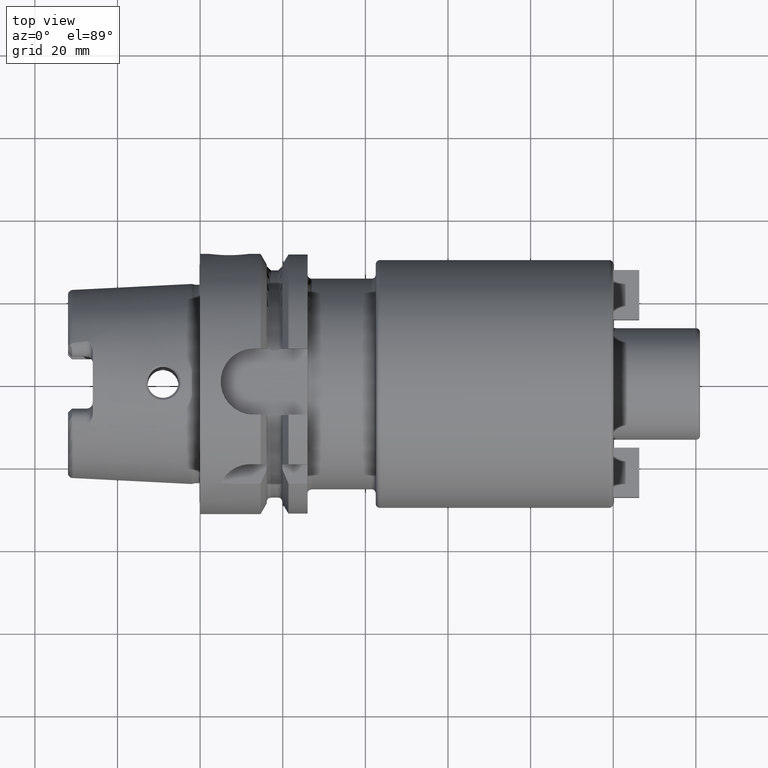
[diagram: clean part render]
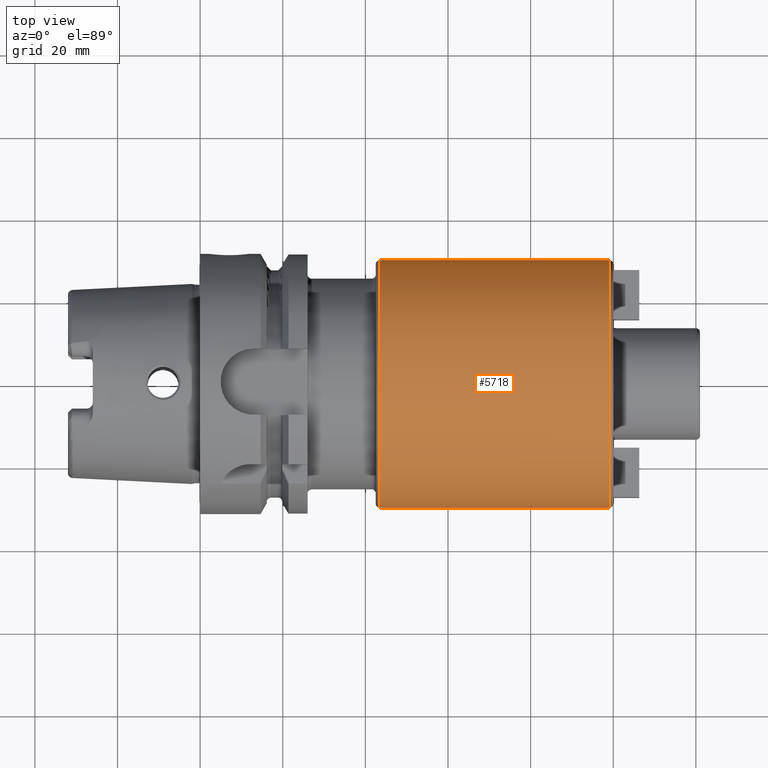
[diagram: same view with one face highlighted and labeled with its STEP entity id]
A machine part, top view. The second image highlights one B-rep face of the part: STEP entity #5718.
In plain terms, the highlighted cylindrical surface (partial cylindrical patch) has radius 30 mm, axis along (1, 0, 0).
Its self-contained STEP definition (entity closure, byte-faithful):
#2115=DIRECTION('',(-1.E0,0.E0,0.E0));
#2116=VECTOR('',#2115,5.55E1);
#2117=CARTESIAN_POINT('',(9.9E1,-3.E1,7.471729513904E-14));
#2118=LINE('',#2117,#2116);
#2124=DIRECTION('',(-1.E0,0.E0,0.E0));
#2125=VECTOR('',#2124,5.55E1);
#2126=CARTESIAN_POINT('',(9.9E1,3.E1,-7.563578023840E-14));
#2127=LINE('',#2126,#2125);
#2128=CARTESIAN_POINT('',(4.35E1,0.E0,0.E0));
#2129=DIRECTION('',(1.E0,0.E0,0.E0));
#2130=DIRECTION('',(0.E0,1.E0,0.E0));
#2131=AXIS2_PLACEMENT_3D('',#2128,#2129,#2130);
#2133=CARTESIAN_POINT('',(9.9E1,0.E0,0.E0));
#2134=DIRECTION('',(-1.E0,0.E0,0.E0));
#2135=DIRECTION('',(0.E0,-1.E0,0.E0));
#2136=AXIS2_PLACEMENT_3D('',#2133,#2134,#2135);
#3281=CARTESIAN_POINT('',(9.9E1,3.E1,0.E0));
#3282=CARTESIAN_POINT('',(9.9E1,-3.E1,0.E0));
#3283=VERTEX_POINT('',#3281);
#3284=VERTEX_POINT('',#3282);
#3376=CARTESIAN_POINT('',(4.35E1,-3.E1,0.E0));
#3377=CARTESIAN_POINT('',(4.35E1,3.E1,0.E0));
#3378=VERTEX_POINT('',#3376);
#3379=VERTEX_POINT('',#3377);
#5705=CARTESIAN_POINT('',(2.125E1,0.E0,0.E0));
#5706=DIRECTION('',(1.E0,0.E0,0.E0));
#5707=DIRECTION('',(0.E0,-1.E0,0.E0));
#5708=AXIS2_PLACEMENT_3D('',#5705,#5706,#5707);
#5709=CYLINDRICAL_SURFACE('',#5708,3.E1);
#5711=ORIENTED_EDGE('',*,*,#5710,.F.);
#5712=ORIENTED_EDGE('',*,*,#5700,.F.);
#5714=ORIENTED_EDGE('',*,*,#5713,.F.);
#5715=ORIENTED_EDGE('',*,*,#5696,.T.);
#5716=EDGE_LOOP('',(#5711,#5712,#5714,#5715));
#5717=FACE_OUTER_BOUND('',#5716,.F.);
#5718=ADVANCED_FACE('',(#5717),#5709,.T.);
#2132=CIRCLE('',#2131,3.E1);
#2137=CIRCLE('',#2136,3.E1);
#5696=EDGE_CURVE('',#3284,#3378,#2118,.T.);
#5700=EDGE_CURVE('',#3283,#3379,#2127,.T.);
#5710=EDGE_CURVE('',#3379,#3378,#2132,.T.);
#5713=EDGE_CURVE('',#3284,#3283,#2137,.T.);